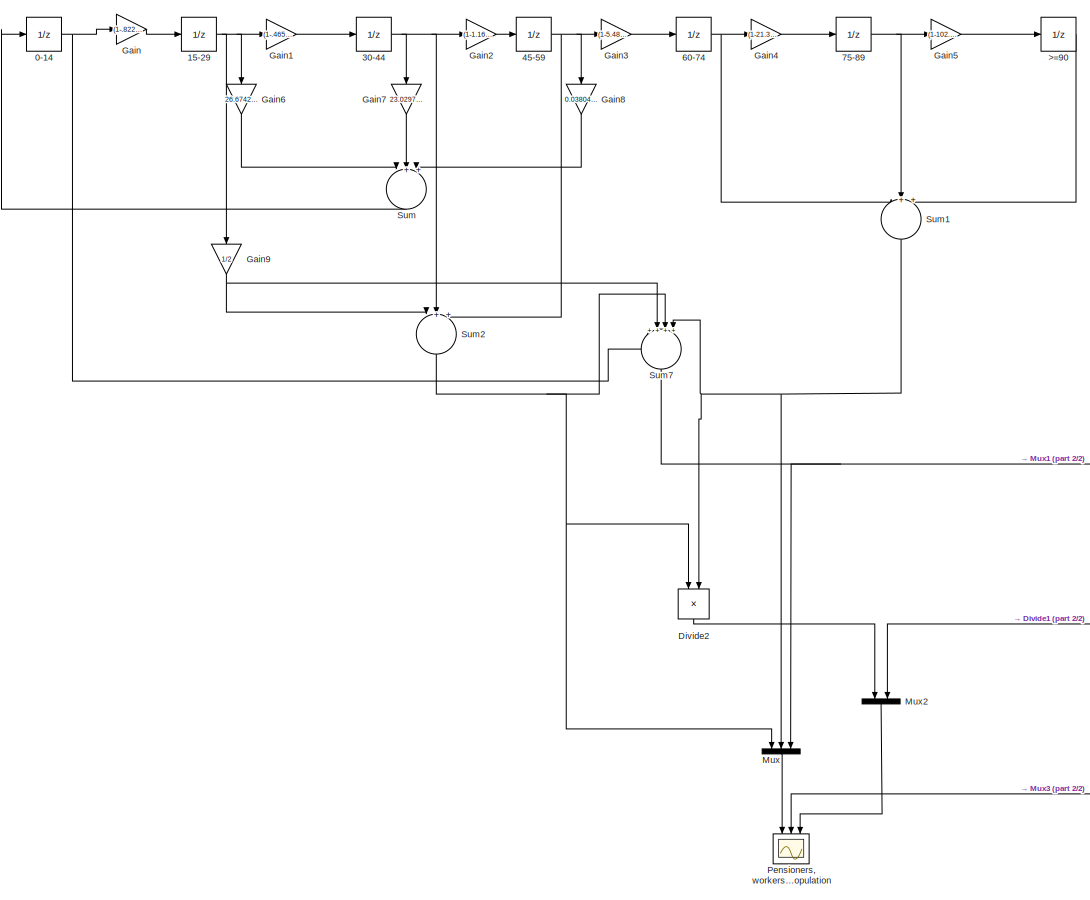
[diagram: root canvas - part 1/2, left side, full height]
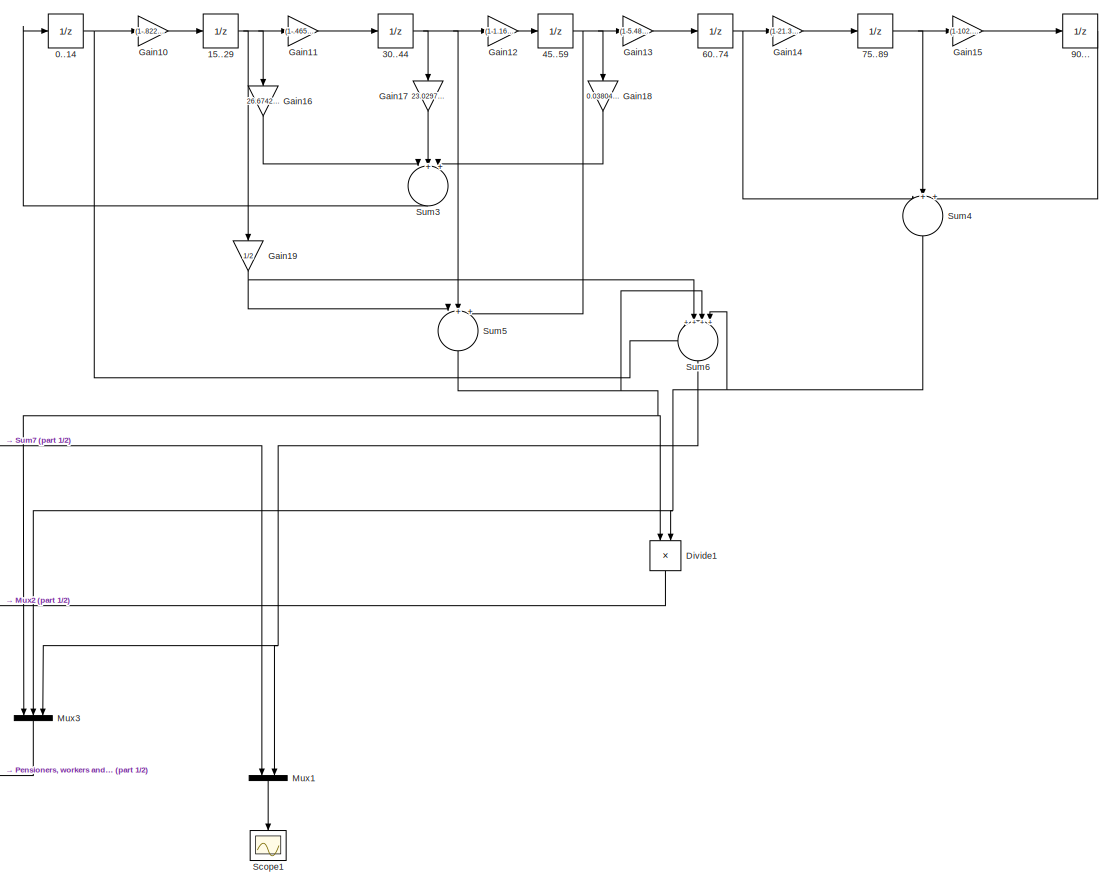
[diagram: root canvas - part 2/2, right side, full height]
MODEL HW4_final_
KIND model
BLOCK [UnitDelay] 0-14
  InputProcessing = Elements as channels (sample based)
  SID = 62
  SampleTime = 15
  X0 = 1494370
BLOCK [UnitDelay] 0..14
  InputProcessing = Elements as channels (sample based)
  SID = 124
  SampleTime = 15
  X0 = 1494370
BLOCK [UnitDelay] 15-29
  InputProcessing = Elements as channels (sample based)
  SID = 66
  SampleTime = 15
  X0 = 2075652
BLOCK [UnitDelay] 15..29
  InputProcessing = Elements as channels (sample based)
  SID = 125
  SampleTime = 15
  X0 = 2075652
BLOCK [UnitDelay] 30-44
  InputProcessing = Elements as channels (sample based)
  SID = 63
  SampleTime = 15
  X0 = 2474329
BLOCK [UnitDelay] 30..44
  InputProcessing = Elements as channels (sample based)
  SID = 126
  SampleTime = 15
  X0 = 2474329
BLOCK [UnitDelay] 45-59
  InputProcessing = Elements as channels (sample based)
  SID = 64
  SampleTime = 15
  X0 = 2142379
BLOCK [UnitDelay] 45..59
  InputProcessing = Elements as channels (sample based)
  SID = 127
  SampleTime = 15
  X0 = 2142379
BLOCK [UnitDelay] 60-74
  InputProcessing = Elements as channels (sample based)
  SID = 65
  SampleTime = 15
  X0 = 1626214
BLOCK [UnitDelay] 60..74
  InputProcessing = Elements as channels (sample based)
  SID = 128
  SampleTime = 15
  X0 = 1626214
BLOCK [UnitDelay] 75-89
  InputProcessing = Elements as channels (sample based)
  SID = 68
  SampleTime = 15
  X0 = 665283
BLOCK [UnitDelay] 75..89
  InputProcessing = Elements as channels (sample based)
  SID = 129
  SampleTime = 15
  X0 = 665283
BLOCK [UnitDelay] 90...
  InputProcessing = Elements as channels (sample based)
  SID = 130
  SampleTime = 15
  X0 = 28586
BLOCK [UnitDelay] >=90
  InputProcessing = Elements as channels (sample based)
  SID = 69
  SampleTime = 15
  X0 = 28586
BLOCK [Product] Divide1
  InputSameDT = off
  Inputs = /*
  OutDataTypeStr = Inherit: Inherit via internal rule
  Ports = [2, 1]
  RndMeth = Floor
  SID = 131
  SaturateOnIntegerOverflow = off
BLOCK [Product] Divide2
  InputSameDT = off
  Inputs = /*
  OutDataTypeStr = Inherit: Inherit via internal rule
  Ports = [2, 1]
  RndMeth = Floor
  SID = 153
  SaturateOnIntegerOverflow = off
BLOCK [Gain] Gain
  Gain = (1-.822164/1000)^15
  OutDataTypeStr = Inherit: Inherit via internal rule
  ParamDataTypeStr = Inherit: Inherit via internal rule
  SID = 2
  SaturateOnIntegerOverflow = off
BLOCK [Gain] Gain1
  Gain = (1-.465078/1000)^15\n
  OutDataTypeStr = Inherit: Inherit via internal rule
  ParamDataTypeStr = Inherit: Inherit via internal rule
  SID = 14
  SaturateOnIntegerOverflow = off
BLOCK [Gain] Gain10
  Gain = (1-.822164/1000)^15
  OutDataTypeStr = Inherit: Inherit via internal rule
  ParamDataTypeStr = Inherit: Inherit via internal rule
  SID = 132
  SaturateOnIntegerOverflow = off
BLOCK [Gain] Gain11
  Gain = (1-.465078/1000)^15\n
  OutDataTypeStr = Inherit: Inherit via internal rule
  ParamDataTypeStr = Inherit: Inherit via internal rule
  SID = 133
  SaturateOnIntegerOverflow = off
BLOCK [Gain] Gain12
  Gain = (1-1.16375/1000)^15
  OutDataTypeStr = Inherit: Inherit via internal rule
  ParamDataTypeStr = Inherit: Inherit via internal rule
  SID = 134
  SaturateOnIntegerOverflow = off
BLOCK [Gain] Gain13
  Gain = (1-5.48891/1000)^15
  OutDataTypeStr = Inherit: Inherit via internal rule
  ParamDataTypeStr = Inherit: Inherit via internal rule
  SID = 135
  SaturateOnIntegerOverflow = off
BLOCK [Gain] Gain14
  Gain = (1-21.34731/1000)^15
  OutDataTypeStr = Inherit: Inherit via internal rule
  ParamDataTypeStr = Inherit: Inherit via internal rule
  SID = 136
  SaturateOnIntegerOverflow = off
BLOCK [Gain] Gain15
  Gain = (1-102.3956/1000)^15
  OutDataTypeStr = Inherit: Inherit via internal rule
  ParamDataTypeStr = Inherit: Inherit via internal rule
  SID = 137
  SaturateOnIntegerOverflow = off
BLOCK [Gain] Gain16
  Gain = 26.67422/1000*15*1.25
  OutDataTypeStr = Inherit: Inherit via internal rule
  ParamDataTypeStr = Inherit: Inherit via internal rule
  SID = 138
  SaturateOnIntegerOverflow = off
BLOCK [Gain] Gain17
  Gain = 23.029775/1000*15
  OutDataTypeStr = Inherit: Inherit via internal rule
  ParamDataTypeStr = Inherit: Inherit via internal rule
  SID = 139
  SaturateOnIntegerOverflow = off
BLOCK [Gain] Gain18
  Gain = 0.0380419/1000*15
  OutDataTypeStr = Inherit: Inherit via internal rule
  ParamDataTypeStr = Inherit: Inherit via internal rule
  SID = 140
  SaturateOnIntegerOverflow = off
BLOCK [Gain] Gain19
  Gain = 1/2
  OutDataTypeStr = Inherit: Inherit via internal rule
  ParamDataTypeStr = Inherit: Inherit via internal rule
  SID = 141
  SaturateOnIntegerOverflow = off
BLOCK [Gain] Gain2
  Gain = (1-1.16375/1000)^15
  OutDataTypeStr = Inherit: Inherit via internal rule
  ParamDataTypeStr = Inherit: Inherit via internal rule
  SID = 15
  SaturateOnIntegerOverflow = off
BLOCK [Gain] Gain3
  Gain = (1-5.48891/1000)^15
  OutDataTypeStr = Inherit: Inherit via internal rule
  ParamDataTypeStr = Inherit: Inherit via internal rule
  SID = 16
  SaturateOnIntegerOverflow = off
BLOCK [Gain] Gain4
  Gain = (1-21.34731/1000)^15
  OutDataTypeStr = Inherit: Inherit via internal rule
  ParamDataTypeStr = Inherit: Inherit via internal rule
  SID = 18
  SaturateOnIntegerOverflow = off
BLOCK [Gain] Gain5
  Gain = (1-102.3956/1000)^15
  OutDataTypeStr = Inherit: Inherit via internal rule
  ParamDataTypeStr = Inherit: Inherit via internal rule
  SID = 20
  SaturateOnIntegerOverflow = off
BLOCK [Gain] Gain6
  Gain = 26.67422/1000*15
  OutDataTypeStr = Inherit: Inherit via internal rule
  ParamDataTypeStr = Inherit: Inherit via internal rule
  SID = 21
  SaturateOnIntegerOverflow = off
BLOCK [Gain] Gain7
  Gain = 23.029775/1000*15
  OutDataTypeStr = Inherit: Inherit via internal rule
  ParamDataTypeStr = Inherit: Inherit via internal rule
  SID = 22
  SaturateOnIntegerOverflow = off
BLOCK [Gain] Gain8
  Gain = 0.0380419/1000*15
  OutDataTypeStr = Inherit: Inherit via internal rule
  ParamDataTypeStr = Inherit: Inherit via internal rule
  SID = 23
  SaturateOnIntegerOverflow = off
BLOCK [Gain] Gain9
  Gain = 1/2
  OutDataTypeStr = Inherit: Inherit via internal rule
  ParamDataTypeStr = Inherit: Inherit via internal rule
  SID = 26
  SaturateOnIntegerOverflow = off
BLOCK [Mux] Mux
  DisplayOption = bar
  Inputs = 3
  Ports = [3, 1]
  SID = 148
BLOCK [Mux] Mux1
  DisplayOption = bar
  Inputs = 2
  Ports = [2, 1]
  SID = 149
BLOCK [Mux] Mux2
  DisplayOption = bar
  Inputs = 2
  Ports = [2, 1]
  SID = 157
BLOCK [Mux] Mux3
  DisplayOption = bar
  Inputs = 3
  Ports = [3, 1]
  SID = 158
BLOCK [Scope] Pensioners, workers and entire population 
  DataFormat = StructureWithTime
  Floating = off
  NumInputPorts = 3
  Ports = [3]
  SID = 147
  SampleTime = 0
  ShowLegends = off
  YMax = 5~5~5
  YMin = -5~-5~-5
  ZoomMode = yonly
BLOCK [Scope] Scope1
  DataFormat = StructureWithTime
  Floating = off
  NumInputPorts = 1
  Ports = [1]
  SID = 150
  SampleTime = 0
  SaveName = ScopeData1
  ShowLegends = off
BLOCK [Sum] Sum
  IconShape = round
  InputSameDT = off
  Inputs = |+|+|+|
  OutDataTypeStr = Inherit: Inherit via internal rule
  Ports = [3, 1]
  SID = 5
  SaturateOnIntegerOverflow = off
BLOCK [Sum] Sum1
  IconShape = round
  InputSameDT = off
  Inputs = |+|+|+|
  OutDataTypeStr = Inherit: Inherit via internal rule
  Ports = [3, 1]
  SID = 24
  SaturateOnIntegerOverflow = off
BLOCK [Sum] Sum2
  IconShape = round
  InputSameDT = off
  Inputs = |+|+|+|
  OutDataTypeStr = Inherit: Inherit via internal rule
  Ports = [3, 1]
  SID = 25
  SaturateOnIntegerOverflow = off
BLOCK [Sum] Sum3
  IconShape = round
  InputSameDT = off
  Inputs = |+|+|+|
  OutDataTypeStr = Inherit: Inherit via internal rule
  Ports = [3, 1]
  SID = 143
  SaturateOnIntegerOverflow = off
BLOCK [Sum] Sum4
  IconShape = round
  InputSameDT = off
  Inputs = |+|+|+|
  OutDataTypeStr = Inherit: Inherit via internal rule
  Ports = [3, 1]
  SID = 144
  SaturateOnIntegerOverflow = off
BLOCK [Sum] Sum5
  IconShape = round
  InputSameDT = off
  Inputs = |+|+|+|
  OutDataTypeStr = Inherit: Inherit via internal rule
  Ports = [3, 1]
  SID = 145
  SaturateOnIntegerOverflow = off
BLOCK [Sum] Sum6
  IconShape = round
  InputSameDT = off
  Inputs = ++++|
  OutDataTypeStr = Inherit: Inherit via internal rule
  Ports = [4, 1]
  SID = 146
  SaturateOnIntegerOverflow = off
BLOCK [Sum] Sum7
  IconShape = round
  InputSameDT = off
  Inputs = ++++|
  OutDataTypeStr = Inherit: Inherit via internal rule
  Ports = [4, 1]
  SID = 98
  SaturateOnIntegerOverflow = off
NET 0-14:1 -> Gain:1, Sum7:1
NET 0..14:1 -> Gain10:1, Sum6:1
NET 15-29:1 -> Gain1:1, Gain6:1, Gain9:1
NET 15..29:1 -> Gain11:1, Gain16:1, Gain19:1
NET 30-44:1 -> Gain2:1, Gain7:1, Sum2:2
NET 30..44:1 -> Gain12:1, Gain17:1, Sum5:2
NET 45-59:1 -> Gain3:1, Gain8:1, Sum2:3
NET 45..59:1 -> Gain13:1, Gain18:1, Sum5:3
NET 60-74:1 -> Gain4:1, Sum1:1
NET 60..74:1 -> Gain14:1, Sum4:1
NET 75-89:1 -> Gain5:1, Sum1:2
NET 75..89:1 -> Gain15:1, Sum4:2
LINE 90...:1 -> Sum4:3
LINE >=90:1 -> Sum1:3
LINE Divide1:1 -> Mux2:2
LINE Divide2:1 -> Mux2:1
LINE Gain10:1 -> 15..29:1
LINE Gain11:1 -> 30..44:1
LINE Gain12:1 -> 45..59:1
LINE Gain13:1 -> 60..74:1
LINE Gain14:1 -> 75..89:1
LINE Gain15:1 -> 90...:1
LINE Gain16:1 -> Sum3:1
LINE Gain17:1 -> Sum3:2
LINE Gain18:1 -> Sum3:3
NET Gain19:1 -> Sum5:1, Sum6:2
LINE Gain1:1 -> 30-44:1
LINE Gain2:1 -> 45-59:1
LINE Gain3:1 -> 60-74:1
LINE Gain4:1 -> 75-89:1
LINE Gain5:1 -> >=90:1
LINE Gain6:1 -> Sum:1
LINE Gain7:1 -> Sum:2
LINE Gain8:1 -> Sum:3
NET Gain9:1 -> Sum2:1, Sum7:2
LINE Gain:1 -> 15-29:1
LINE Mux1:1 -> Scope1:1
LINE Mux2:1 -> Pensioners, workers and entire population :3
LINE Mux3:1 -> Pensioners, workers and entire population :2
LINE Mux:1 -> Pensioners, workers and entire population :1
NET Sum1:1 -> Divide2:2, Mux:2, Sum7:4
NET Sum2:1 -> Divide2:1, Mux:1, Sum7:3
LINE Sum3:1 -> 0..14:1
NET Sum4:1 -> Divide1:2, Mux3:2, Sum6:4
NET Sum5:1 -> Divide1:1, Mux3:1, Sum6:3
NET Sum6:1 -> Mux1:2, Mux3:3
NET Sum7:1 -> Mux1:1, Mux:3
LINE Sum:1 -> 0-14:1
note: NET lines group one-source signal fan-out (src -> all destinations, sorted); 1:1 wires keep LINE
